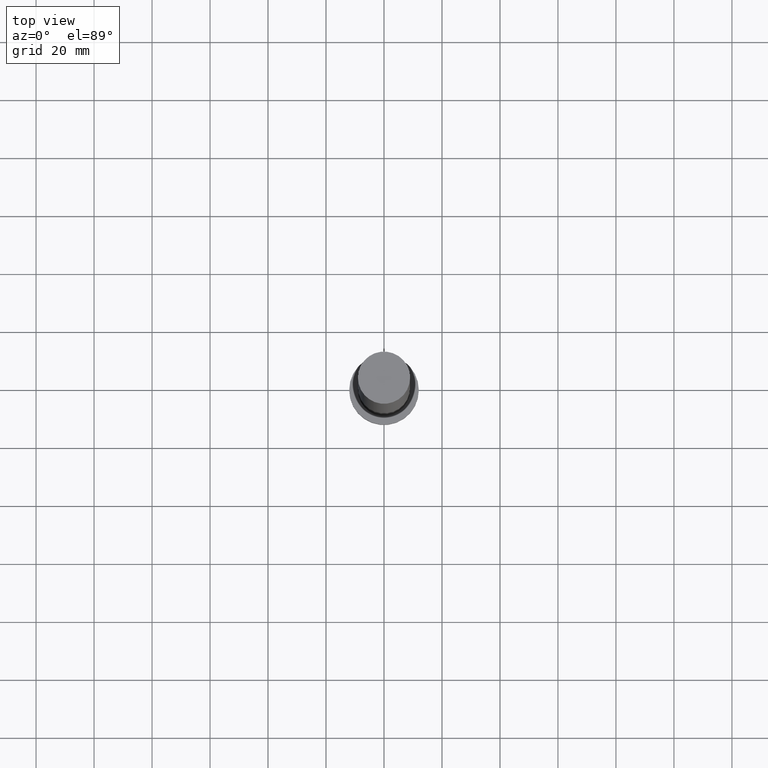
[diagram: clean part render]
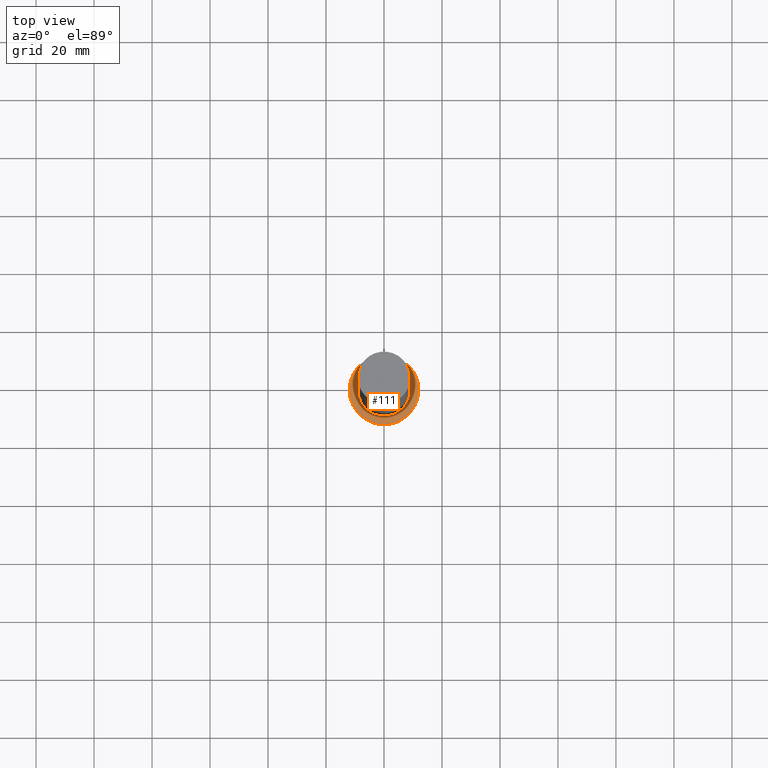
[diagram: same view with one face highlighted and labeled with its STEP entity id]
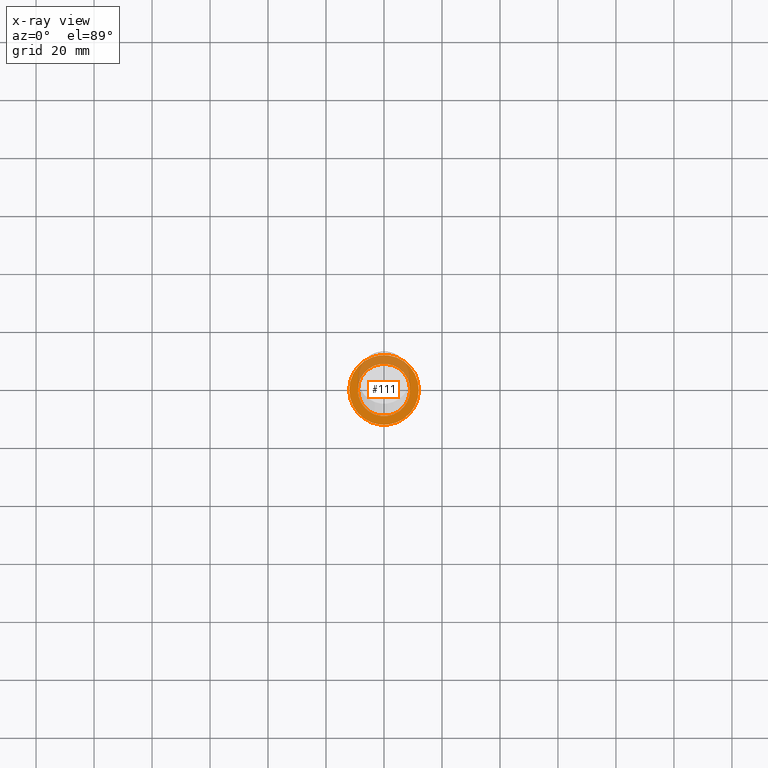
[diagram: x-ray of the same camera — body ghosted, the highlighted face saturated]
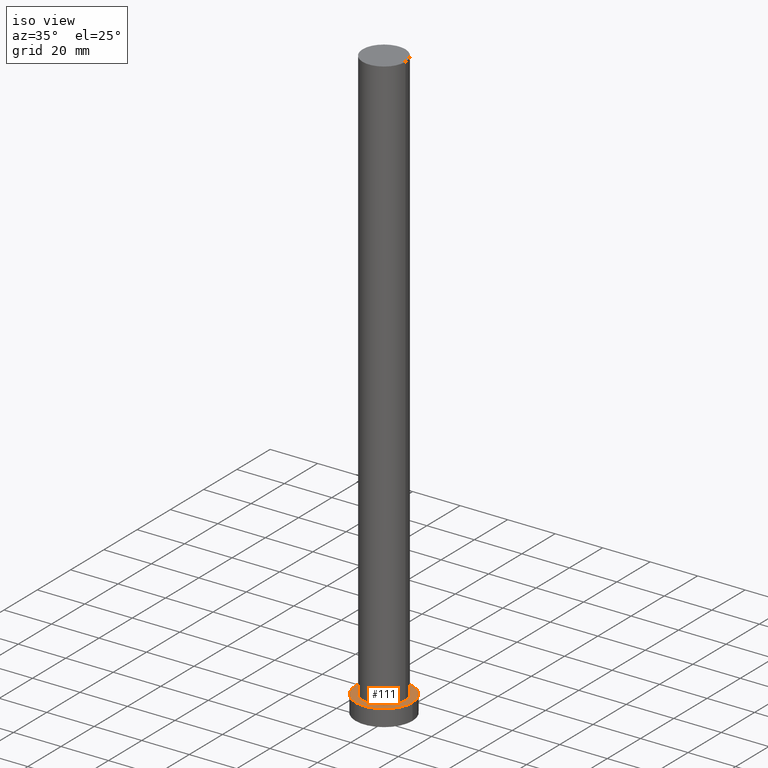
[diagram: same view with one face highlighted and labeled with its STEP entity id]
A machine part, top view. The second image highlights one B-rep face of the part: STEP entity #111.
The next image is the same camera in x-ray: the body ghosted, the highlighted face saturated — about 32% of this face is hidden behind the body in this view.
A second angle (iso view) of the same face is appended — the face is thin or edge-on in the first view.
In plain terms, the highlighted planar face has unit normal (0, 0, 1).
Its self-contained STEP definition (entity closure, byte-faithful):
#1 = EDGE_CURVE ( 'NONE', #15, #238, #222, .T. ) ;
#9 = EDGE_CURVE ( 'NONE', #137, #112, #119, .T. ) ;
#12 = CIRCLE ( 'NONE', #244, 12.00000000000000178 ) ;
#15 = VERTEX_POINT ( 'NONE', #68 ) ;
#22 = DIRECTION ( 'NONE',  ( 0.000000000000000000, 0.000000000000000000, 1.000000000000000000 ) ) ;
#33 = CARTESIAN_POINT ( 'NONE',  ( 0.000000000000000000, 0.000000000000000000, 7.000000000000000000 ) ) ;
#40 = DIRECTION ( 'NONE',  ( 0.000000000000000000, 0.000000000000000000, 1.000000000000000000 ) ) ;
#57 = FACE_OUTER_BOUND ( 'NONE', #201, .T. ) ;
#58 = CARTESIAN_POINT ( 'NONE',  ( 9.000000000000000000, 1.102182119232617714E-15, 7.000000000000000000 ) ) ;
#65 = ORIENTED_EDGE ( 'NONE', *, *, #9, .F. ) ;
#68 = CARTESIAN_POINT ( 'NONE',  ( -12.00000000000000178, 0.000000000000000000, 7.000000000000000000 ) ) ;
#70 = CARTESIAN_POINT ( 'NONE',  ( 0.000000000000000000, 0.000000000000000000, 7.000000000000000000 ) ) ;
#72 = CARTESIAN_POINT ( 'NONE',  ( 12.00000000000000178, 1.469576158976824144E-15, 7.000000000000000000 ) ) ;
#83 = DIRECTION ( 'NONE',  ( 1.000000000000000000, 0.000000000000000000, 0.000000000000000000 ) ) ;
#84 = FACE_BOUND ( 'NONE', #107, .T. ) ;
#85 = EDGE_CURVE ( 'NONE', #238, #15, #12, .T. ) ;
#87 = CARTESIAN_POINT ( 'NONE',  ( -9.000000000000000000, 0.000000000000000000, 7.000000000000000000 ) ) ;
#101 = ORIENTED_EDGE ( 'NONE', *, *, #125, .F. ) ;
#103 = DIRECTION ( 'NONE',  ( 1.000000000000000000, 0.000000000000000000, 0.000000000000000000 ) ) ;
#107 = EDGE_LOOP ( 'NONE', ( #101, #65 ) ) ;
#111 = ADVANCED_FACE ( 'NONE', ( #84, #57 ), #214, .T. ) ;
#112 = VERTEX_POINT ( 'NONE', #87 ) ;
#119 = CIRCLE ( 'NONE', #224, 9.000000000000000000 ) ;
#125 = EDGE_CURVE ( 'NONE', #112, #137, #152, .T. ) ;
#126 = ORIENTED_EDGE ( 'NONE', *, *, #85, .T. ) ;
#127 = CARTESIAN_POINT ( 'NONE',  ( 0.000000000000000000, 0.000000000000000000, 7.000000000000000000 ) ) ;
#137 = VERTEX_POINT ( 'NONE', #58 ) ;
#152 = CIRCLE ( 'NONE', #218, 9.000000000000000000 ) ;
#161 = DIRECTION ( 'NONE',  ( 1.000000000000000000, 0.000000000000000000, 0.000000000000000000 ) ) ;
#163 = CARTESIAN_POINT ( 'NONE',  ( 0.000000000000000000, 0.000000000000000000, 7.000000000000000000 ) ) ;
#177 = AXIS2_PLACEMENT_3D ( 'NONE', #127, #40, #197 ) ;
#184 = DIRECTION ( 'NONE',  ( 0.000000000000000000, 0.000000000000000000, 1.000000000000000000 ) ) ;
#189 = DIRECTION ( 'NONE',  ( 0.000000000000000000, 0.000000000000000000, 1.000000000000000000 ) ) ;
#195 = DIRECTION ( 'NONE',  ( 0.000000000000000000, 0.000000000000000000, 1.000000000000000000 ) ) ;
#197 = DIRECTION ( 'NONE',  ( 1.000000000000000000, 0.000000000000000000, -0.000000000000000000 ) ) ;
#201 = EDGE_LOOP ( 'NONE', ( #207, #126 ) ) ;
#207 = ORIENTED_EDGE ( 'NONE', *, *, #1, .T. ) ;
#210 = CARTESIAN_POINT ( 'NONE',  ( 0.000000000000000000, 0.000000000000000000, 7.000000000000000000 ) ) ;
#214 = PLANE ( 'NONE',  #177 ) ;
#218 = AXIS2_PLACEMENT_3D ( 'NONE', #210, #189, #247 ) ;
#222 = CIRCLE ( 'NONE', #249, 12.00000000000000178 ) ;
#224 = AXIS2_PLACEMENT_3D ( 'NONE', #163, #184, #83 ) ;
#238 = VERTEX_POINT ( 'NONE', #72 ) ;
#244 = AXIS2_PLACEMENT_3D ( 'NONE', #33, #195, #161 ) ;
#247 = DIRECTION ( 'NONE',  ( 1.000000000000000000, 0.000000000000000000, 0.000000000000000000 ) ) ;
#249 = AXIS2_PLACEMENT_3D ( 'NONE', #70, #22, #103 ) ;